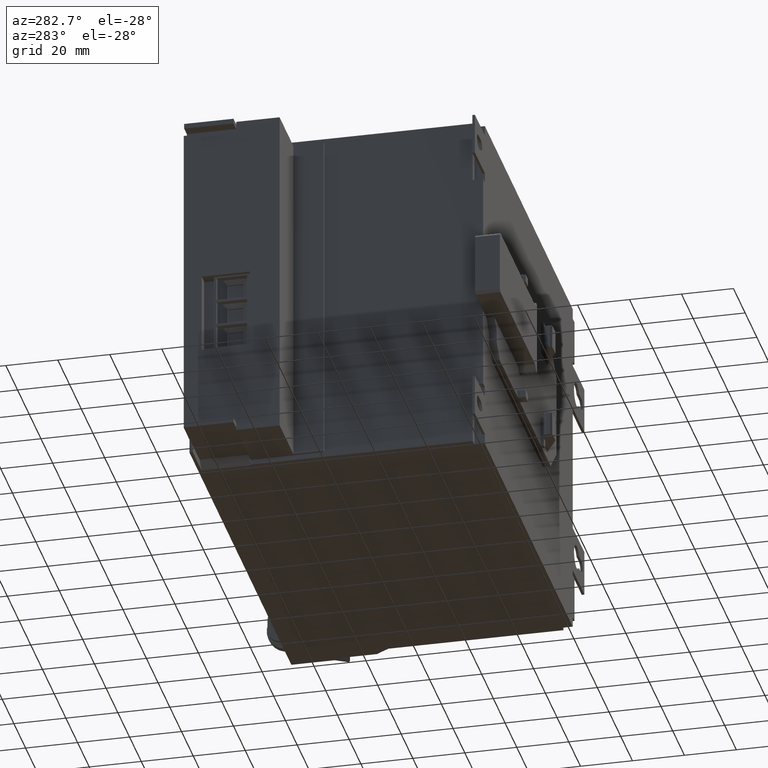
[diagram: clean part render]
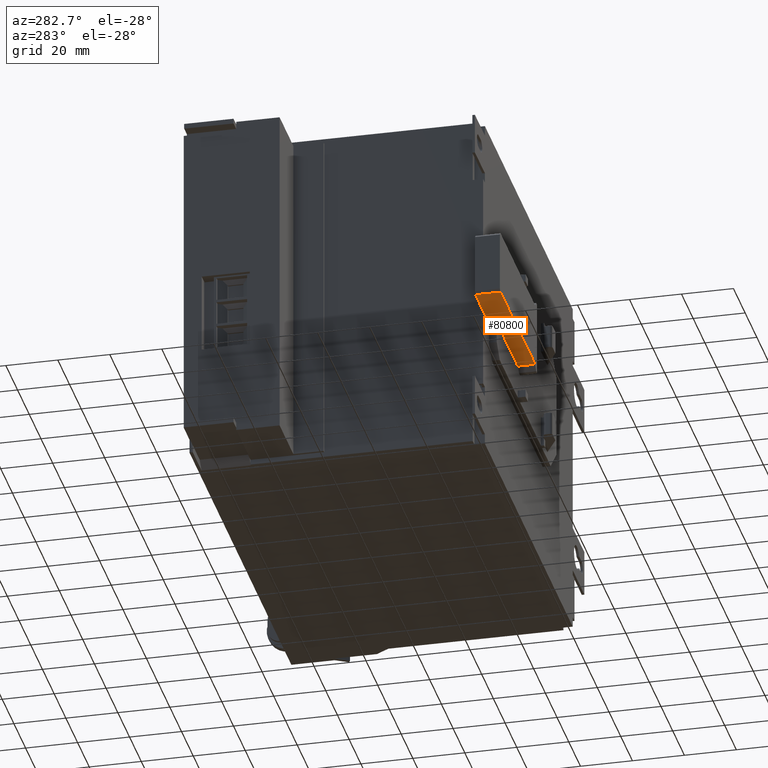
[diagram: same view with one face highlighted and labeled with its STEP entity id]
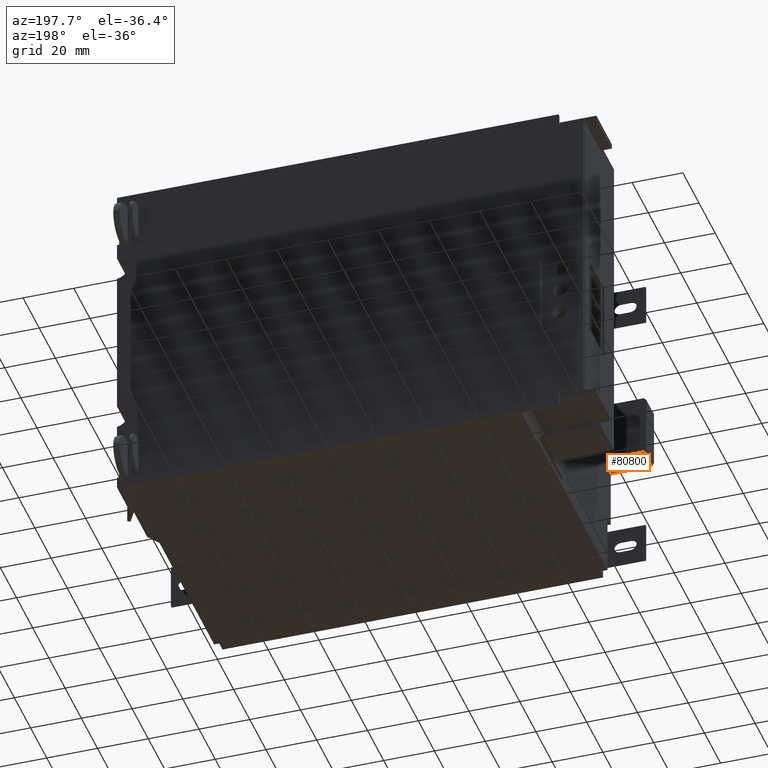
[diagram: same view with one face highlighted and labeled with its STEP entity id]
A machine part, auxiliary view. The second image highlights one B-rep face of the part: STEP entity #80800.
A second angle (auxiliary view) of the same face is appended — the face is thin or edge-on in the first view.
In plain terms, the highlighted planar face has unit normal (0, 0, 1).
Its self-contained STEP definition (entity closure, byte-faithful):
#2260=CARTESIAN_POINT('',(12.5,-1.,1.));
#2270=VERTEX_POINT('',#2260);
#72050=CARTESIAN_POINT('',(12.5,-4.,-5.05));
#72060=VERTEX_POINT('',#72050);
#72090=CARTESIAN_POINT('',(12.5,-4.,-66.65));
#72100=DIRECTION('',(0.,0.,-1.));
#72110=VECTOR('',#72100,1.);
#72120=LINE('',#72090,#72110);
#72130=CARTESIAN_POINT('',(12.5,-4.,-45.1));
#72140=VERTEX_POINT('',#72130);
#72150=EDGE_CURVE('',#72060,#72140,#72120,.T.);
#78860=CARTESIAN_POINT('',(12.5,-1.,-5.05));
#78870=VERTEX_POINT('',#78860);
#78900=CARTESIAN_POINT('',(12.5,0.,-5.04999999999999));
#78910=DIRECTION('',(0.,1.,0.));
#78920=VECTOR('',#78910,1.);
#78930=LINE('',#78900,#78920);
#78940=EDGE_CURVE('',#72060,#78870,#78930,.T.);
#80350=CARTESIAN_POINT('',(12.5,-4.,-23.05));
#80360=DIRECTION('',(1.,-0.,0.));
#80370=DIRECTION('',(0.,0.,-1.));
#80380=AXIS2_PLACEMENT_3D('',#80350,#80360,#80370);
#80390=PLANE('',#80380);
#80400=CARTESIAN_POINT('',(12.5,-1.,0.));
#80410=DIRECTION('',(0.,0.,1.));
#80420=VECTOR('',#80410,1.);
#80430=LINE('',#80400,#80420);
#80440=EDGE_CURVE('',#78870,#2270,#80430,.T.);
#80450=ORIENTED_EDGE('',*,*,#80440,.F.);
#80460=CARTESIAN_POINT('',(12.5,-1.,0.));
#80470=DIRECTION('',(0.,0.,1.));
#80480=VECTOR('',#80470,1.);
#80490=LINE('',#80460,#80480);
#80500=CARTESIAN_POINT('',(12.5,-1.,14.));
#80510=VERTEX_POINT('',#80500);
#80520=EDGE_CURVE('',#2270,#80510,#80490,.T.);
#80530=ORIENTED_EDGE('',*,*,#80520,.F.);
#80540=CARTESIAN_POINT('',(12.5,0.,14.));
#80550=DIRECTION('',(0.,1.,0.));
#80560=VECTOR('',#80550,1.);
#80570=LINE('',#80540,#80560);
#80580=CARTESIAN_POINT('',(12.5,-10.6,14.));
#80590=VERTEX_POINT('',#80580);
#80600=EDGE_CURVE('',#80590,#80510,#80570,.T.);
#80610=ORIENTED_EDGE('',*,*,#80600,.T.);
#80620=CARTESIAN_POINT('',(12.5,-10.6,-66.65));
#80630=DIRECTION('',(0.,0.,1.));
#80640=VECTOR('',#80630,1.);
#80650=LINE('',#80620,#80640);
#80660=CARTESIAN_POINT('',(12.4999999999975,-10.6,-45.1000000000025));
#80670=VERTEX_POINT('',#80660);
#80680=EDGE_CURVE('',#80670,#80590,#80650,.T.);
#80690=ORIENTED_EDGE('',*,*,#80680,.T.);
#80700=CARTESIAN_POINT('',(12.5,-11.5,-45.10000000001));
#80710=DIRECTION('',(0.,-1.,0.));
#80720=VECTOR('',#80710,1.);
#80730=LINE('',#80700,#80720);
#80740=EDGE_CURVE('',#72140,#80670,#80730,.T.);
#80750=ORIENTED_EDGE('',*,*,#80740,.T.);
#80760=ORIENTED_EDGE('',*,*,#72150,.T.);
#80770=ORIENTED_EDGE('',*,*,#78940,.F.);
#80780=EDGE_LOOP('',(#80770,#80760,#80750,#80690,#80610,#80530,#80450));
#80790=FACE_OUTER_BOUND('',#80780,.T.);
#80800=ADVANCED_FACE('',(#80790),#80390,.F.);